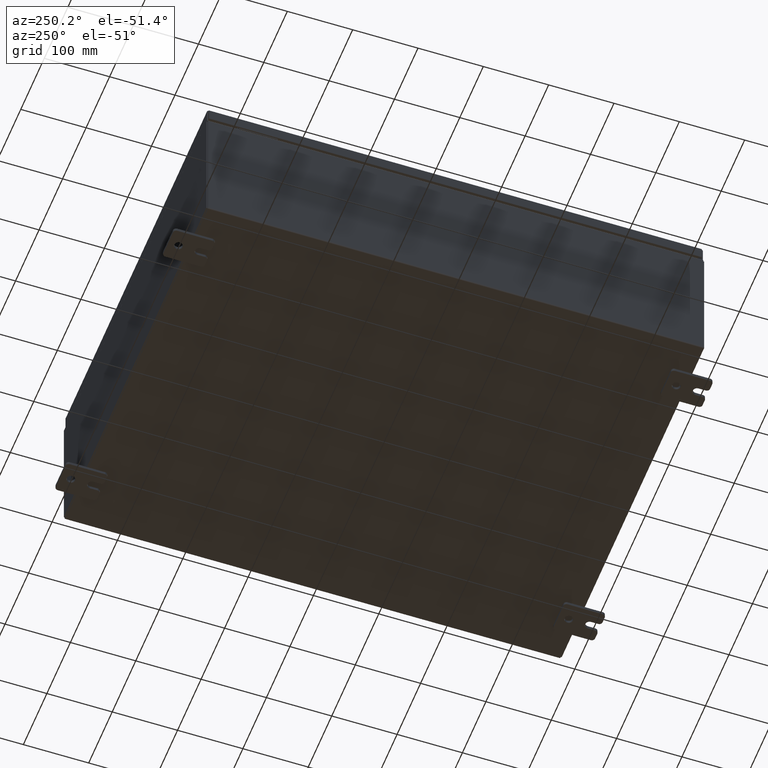
[diagram: clean part render]
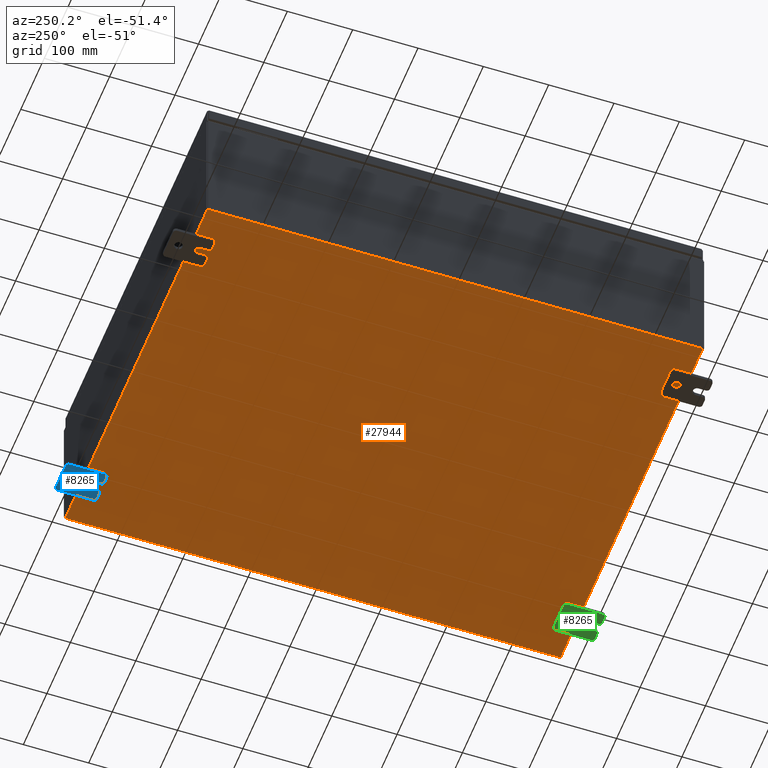
[diagram: same view with three faces highlighted in distinct colors, each labeled with its STEP entity id]
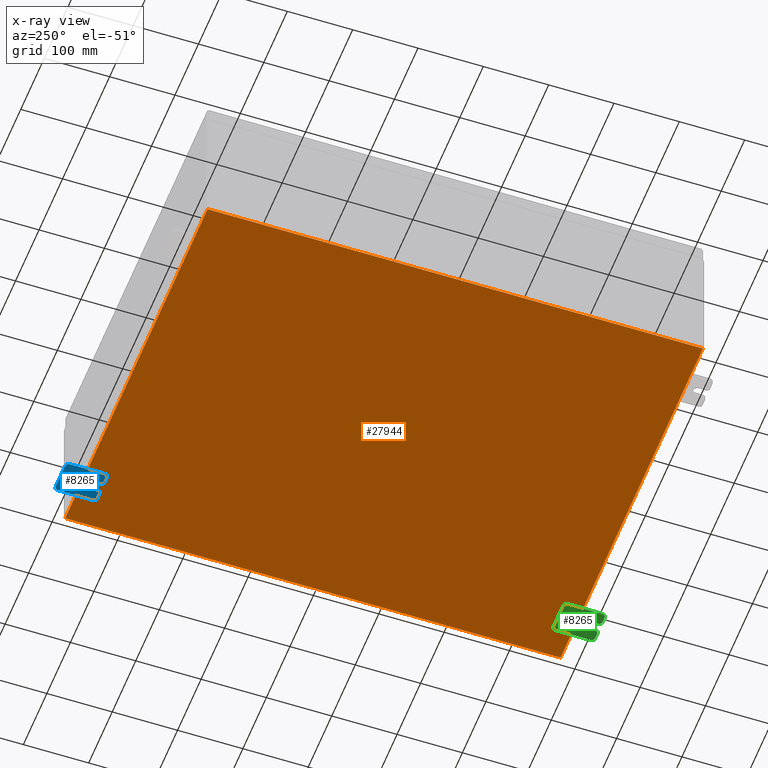
[diagram: x-ray of the same camera — body ghosted, the three highlighted faces saturated]
A machine part, auxiliary view with three faces highlighted in distinct colors.
The next image is the same camera in x-ray (body ghosted, the three faces saturated) — at least one of them is partly hidden behind the body in this view.
Their STEP definitions:

[orange] entity #27944 — the highlighted planar face has unit normal (0, 0, -1).
#3348 = FACE_OUTER_BOUND ( 'NONE', #10997, .T. ) ;
#3614 = EDGE_CURVE ( 'NONE', #29644, #48161, #17969, .T. ) ;
#4182 = VECTOR ( 'NONE', #53133, 39.37007874015748100 ) ;
#6231 = ORIENTED_EDGE ( 'NONE', *, *, #3614, .T. ) ;
#6518 = DIRECTION ( 'NONE',  ( -1.000000000000000000, 0.0000000000000000000, -0.0000000000000000000 ) ) ;
#6963 = DIRECTION ( 'NONE',  ( 0.0000000000000000000, 0.0000000000000000000, -1.000000000000000000 ) ) ;
#8586 = DIRECTION ( 'NONE',  ( 1.000000000000000000, 0.0000000000000000000, 0.0000000000000000000 ) ) ;
#10997 = EDGE_LOOP ( 'NONE', ( #41927, #6231, #54298, #20242 ) ) ;
#15297 = EDGE_CURVE ( 'NONE', #54032, #61108, #56868, .T. ) ;
#16483 = DIRECTION ( 'NONE',  ( -0.0000000000000000000, 1.000000000000000000, -0.0000000000000000000 ) ) ;
#17969 = LINE ( 'NONE', #28204, #55926 ) ;
#20242 = ORIENTED_EDGE ( 'NONE', *, *, #15297, .T. ) ;
#23399 = CARTESIAN_POINT ( 'NONE',  ( 11.91229999999999700, 14.92530000000000000, -0.07470000000000226500 ) ) ;
#23504 = LINE ( 'NONE', #36983, #48373 ) ;
#23660 = EDGE_CURVE ( 'NONE', #29644, #61108, #50245, .T. ) ;
#26194 = CARTESIAN_POINT ( 'NONE',  ( 11.91229999999999700, 14.92530000000000000, -0.07470000000000226500 ) ) ;
#27944 = ADVANCED_FACE ( 'NONE', ( #3348 ), #32787, .T. ) ;
#28204 = CARTESIAN_POINT ( 'NONE',  ( -11.91230000000000500, -14.92530000000000000, -0.07469999999999994700 ) ) ;
#29644 = VERTEX_POINT ( 'NONE', #63774 ) ;
#32787 = PLANE ( 'NONE',  #55988 ) ;
#36983 = CARTESIAN_POINT ( 'NONE',  ( -12.00000000000000500, 14.92530000000000000, -0.07470000000000000300 ) ) ;
#38196 = CARTESIAN_POINT ( 'NONE',  ( -12.00000000000000500, -14.92530000000000000, -0.07470000000000000300 ) ) ;
#41927 = ORIENTED_EDGE ( 'NONE', *, *, #23660, .F. ) ;
#47126 = VECTOR ( 'NONE', #8586, 39.37007874015748100 ) ;
#48161 = VERTEX_POINT ( 'NONE', #52408 ) ;
#48373 = VECTOR ( 'NONE', #61700, 39.37007874015748100 ) ;
#50245 = LINE ( 'NONE', #38196, #47126 ) ;
#52408 = CARTESIAN_POINT ( 'NONE',  ( -11.91230000000000500, 14.92530000000000000, -0.07470000000000000300 ) ) ;
#53133 = DIRECTION ( 'NONE',  ( -0.0000000000000000000, -1.000000000000000000, 8.208677865577646300E-017 ) ) ;
#54032 = VERTEX_POINT ( 'NONE', #26194 ) ;
#54298 = ORIENTED_EDGE ( 'NONE', *, *, #57365, .F. ) ;
#55926 = VECTOR ( 'NONE', #16483, 39.37007874015748100 ) ;
#55988 = AXIS2_PLACEMENT_3D ( 'NONE', #57548, #6963, #6518 ) ;
#56868 = LINE ( 'NONE', #23399, #4182 ) ;
#57365 = EDGE_CURVE ( 'NONE', #54032, #48161, #23504, .T. ) ;
#57548 = CARTESIAN_POINT ( 'NONE',  ( 0.0000000000000000000, 0.0000000000000000000, -0.07470000000000000300 ) ) ;
#60917 = CARTESIAN_POINT ( 'NONE',  ( 11.91229999999998800, -14.92530000000000000, -0.07470000000000000300 ) ) ;
#61108 = VERTEX_POINT ( 'NONE', #60917 ) ;
#61700 = DIRECTION ( 'NONE',  ( -1.000000000000000000, -0.0000000000000000000, -0.0000000000000000000 ) ) ;
#63774 = CARTESIAN_POINT ( 'NONE',  ( -11.91230000000000500, -14.92530000000000000, -0.07469999999999994700 ) ) ;

[blue] entity #8265 — the highlighted planar face has unit normal (0, 0, 1).
#975 = ORIENTED_EDGE ( 'NONE', *, *, #7274, .T. ) ;
#1472 = CARTESIAN_POINT ( 'NONE',  ( -0.1879999999999997800, -1.250000000000005600, -1.000000000000006200 ) ) ;
#1635 = EDGE_CURVE ( 'NONE', #60725, #10153, #49084, .T. ) ;
#2821 = DIRECTION ( 'NONE',  ( -1.000000000000000000, -0.0000000000000000000, 0.0000000000000000000 ) ) ;
#2991 = CARTESIAN_POINT ( 'NONE',  ( -0.1879999999999997800, -1.060000000000003400, -0.4400000000000005000 ) ) ;
#3615 = VERTEX_POINT ( 'NONE', #56563 ) ;
#6241 = AXIS2_PLACEMENT_3D ( 'NONE', #39733, #10090, #44745 ) ;
#7274 = EDGE_CURVE ( 'NONE', #24357, #14439, #41748, .T. ) ;
#7990 = DIRECTION ( 'NONE',  ( 0.0000000000000000000, 0.0000000000000000000, -1.000000000000000000 ) ) ;
#8062 = CARTESIAN_POINT ( 'NONE',  ( -0.1880000000000001900, -0.6249999999999992200, 0.2500000000000005000 ) ) ;
#8186 = CARTESIAN_POINT ( 'NONE',  ( -0.1880000000000010000, 0.6249999999999992200, -7.703811342100550500E-020 ) ) ;
#8255 = CARTESIAN_POINT ( 'NONE',  ( -0.1879999999999997800, -1.060000000000001200, 0.9999999999999988900 ) ) ;
#8265 = ADVANCED_FACE ( 'NONE', ( #25356, #63355 ), #28447, .F. ) ;
#8782 = DIRECTION ( 'NONE',  ( 1.000000000000000000, 0.0000000000000000000, -0.0000000000000000000 ) ) ;
#8925 = CARTESIAN_POINT ( 'NONE',  ( -0.1879999999999997800, 1.059999999999993400, -1.000000000000010000 ) ) ;
#8973 = CIRCLE ( 'NONE', #49964, 0.1900000000000011100 ) ;
#9044 = ORIENTED_EDGE ( 'NONE', *, *, #24147, .F. ) ;
#9297 = ORIENTED_EDGE ( 'NONE', *, *, #37527, .T. ) ;
#9809 = ORIENTED_EDGE ( 'NONE', *, *, #47727, .T. ) ;
#10090 = DIRECTION ( 'NONE',  ( -1.000000000000000000, -0.0000000000000000000, 0.0000000000000000000 ) ) ;
#10153 = VERTEX_POINT ( 'NONE', #34964 ) ;
#10985 = CIRCLE ( 'NONE', #46493, 0.2499999999999999200 ) ;
#11330 = EDGE_CURVE ( 'NONE', #42736, #40115, #51720, .T. ) ;
#11623 = VECTOR ( 'NONE', #19531, 39.37007874015748100 ) ;
#11700 = DIRECTION ( 'NONE',  ( 0.0000000000000000000, 0.0000000000000000000, -1.000000000000000000 ) ) ;
#11701 = CARTESIAN_POINT ( 'NONE',  ( -0.1880000000000001900, -0.6249999999999992200, -0.2499999999999993900 ) ) ;
#12077 = CARTESIAN_POINT ( 'NONE',  ( -0.1879999999999997800, -1.250000000000002200, 0.9999999999999992200 ) ) ;
#12304 = LINE ( 'NONE', #12077, #16993 ) ;
#12402 = CARTESIAN_POINT ( 'NONE',  ( -0.1879999999999997800, 1.059999999999993600, -0.8100000000000089400 ) ) ;
#12762 = EDGE_CURVE ( 'NONE', #3615, #13016, #22881, .T. ) ;
#13016 = VERTEX_POINT ( 'NONE', #28437 ) ;
#13138 = DIRECTION ( 'NONE',  ( 0.0000000000000000000, 0.0000000000000000000, -1.000000000000000000 ) ) ;
#13907 = EDGE_CURVE ( 'NONE', #49829, #42736, #15088, .T. ) ;
#14247 = CIRCLE ( 'NONE', #42544, 0.1900000000000011100 ) ;
#14439 = VERTEX_POINT ( 'NONE', #8255 ) ;
#14555 = CARTESIAN_POINT ( 'NONE',  ( -0.1879999999999997800, 1.249999999999997600, 0.9999999999999951200 ) ) ;
#14911 = VECTOR ( 'NONE', #36913, 39.37007874015748100 ) ;
#15088 = LINE ( 'NONE', #48885, #29800 ) ;
#16624 = EDGE_LOOP ( 'NONE', ( #63726, #30612 ) ) ;
#16758 = EDGE_CURVE ( 'NONE', #24357, #47095, #28063, .T. ) ;
#16993 = VECTOR ( 'NONE', #31749, 39.37007874015748100 ) ;
#17323 = EDGE_CURVE ( 'NONE', #10153, #60725, #10985, .T. ) ;
#17402 = DIRECTION ( 'NONE',  ( 0.0000000000000000000, 0.0000000000000000000, -1.000000000000000000 ) ) ;
#18170 = CARTESIAN_POINT ( 'NONE',  ( -0.1880000000000004700, -1.060000000000003400, -0.2499999999999994400 ) ) ;
#19109 = EDGE_LOOP ( 'NONE', ( #44959, #975, #39194, #32625, #47696, #33348, #43721, #9809, #30423, #9297, #9044, #51311, #54661, #51852 ) ) ;
#19531 = DIRECTION ( 'NONE',  ( 0.0000000000000000000, -1.000000000000000000, 1.639108796198558100E-015 ) ) ;
#19925 = DIRECTION ( 'NONE',  ( -1.000000000000000000, -0.0000000000000000000, 0.0000000000000000000 ) ) ;
#20467 = AXIS2_PLACEMENT_3D ( 'NONE', #62904, #8782, #43418 ) ;
#21792 = AXIS2_PLACEMENT_3D ( 'NONE', #22365, #57066, #27345 ) ;
#22365 = CARTESIAN_POINT ( 'NONE',  ( -0.1880000000000001900, -0.6249999999999992200, 6.829619984160658000E-017 ) ) ;
#22881 = LINE ( 'NONE', #32327, #34494 ) ;
#23062 = CARTESIAN_POINT ( 'NONE',  ( -0.1879999999999997800, -1.250000000000004700, -0.4400000000000002200 ) ) ;
#24147 = EDGE_CURVE ( 'NONE', #40115, #60063, #59497, .T. ) ;
#24357 = VERTEX_POINT ( 'NONE', #33409 ) ;
#25356 = FACE_BOUND ( 'NONE', #16624, .T. ) ;
#27345 = DIRECTION ( 'NONE',  ( -6.829619984160660000E-016, -1.000000000000000000, 0.0000000000000000000 ) ) ;
#28063 = LINE ( 'NONE', #31912, #14911 ) ;
#28437 = CARTESIAN_POINT ( 'NONE',  ( -0.1879999999999997800, 1.249999999999997300, 0.8099999999999935000 ) ) ;
#28447 = PLANE ( 'NONE',  #20467 ) ;
#29010 = DIRECTION ( 'NONE',  ( -1.000000000000000000, -0.0000000000000000000, 0.0000000000000000000 ) ) ;
#29800 = VECTOR ( 'NONE', #38873, 39.37007874015748100 ) ;
#30423 = ORIENTED_EDGE ( 'NONE', *, *, #41677, .F. ) ;
#30518 = AXIS2_PLACEMENT_3D ( 'NONE', #2991, #37605, #7990 ) ;
#30612 = ORIENTED_EDGE ( 'NONE', *, *, #1635, .T. ) ;
#30807 = AXIS2_PLACEMENT_3D ( 'NONE', #32424, #2821, #51791 ) ;
#31749 = DIRECTION ( 'NONE',  ( 0.0000000000000000000, -1.639108796198553600E-015, -1.000000000000000000 ) ) ;
#31912 = CARTESIAN_POINT ( 'NONE',  ( -0.1879999999999997800, -1.250000000000002200, 0.9999999999999992200 ) ) ;
#32327 = CARTESIAN_POINT ( 'NONE',  ( -0.1879999999999997800, 1.249999999999994200, -1.000000000000010400 ) ) ;
#32424 = CARTESIAN_POINT ( 'NONE',  ( -0.1879999999999997800, -1.060000000000001600, 0.8099999999999978300 ) ) ;
#32625 = ORIENTED_EDGE ( 'NONE', *, *, #52528, .T. ) ;
#33076 = VECTOR ( 'NONE', #56556, 39.37007874015748100 ) ;
#33348 = ORIENTED_EDGE ( 'NONE', *, *, #45770, .T. ) ;
#33409 = CARTESIAN_POINT ( 'NONE',  ( -0.1879999999999997800, -1.250000000000002400, 0.8099999999999980500 ) ) ;
#33850 = EDGE_CURVE ( 'NONE', #61722, #56961, #37807, .T. ) ;
#34209 = CARTESIAN_POINT ( 'NONE',  ( -0.1880000000000001900, -0.6249999999999992200, -0.2499999999999998600 ) ) ;
#34494 = VECTOR ( 'NONE', #47339, 39.37007874015748100 ) ;
#34964 = CARTESIAN_POINT ( 'NONE',  ( -0.1880000000000010000, 0.6249999999999992200, -0.2499999999999999200 ) ) ;
#36248 = VECTOR ( 'NONE', #50838, 39.37007874015748100 ) ;
#36913 = DIRECTION ( 'NONE',  ( 0.0000000000000000000, -1.639108796198553600E-015, -1.000000000000000000 ) ) ;
#37144 = CIRCLE ( 'NONE', #6241, 0.1900000000000011400 ) ;
#37527 = EDGE_CURVE ( 'NONE', #55088, #60063, #38447, .T. ) ;
#37605 = DIRECTION ( 'NONE',  ( -1.000000000000000000, -0.0000000000000000000, 0.0000000000000000000 ) ) ;
#37807 = LINE ( 'NONE', #1472, #36248 ) ;
#37943 = LINE ( 'NONE', #14555, #11623 ) ;
#38447 = CIRCLE ( 'NONE', #30518, 0.1900000000000011100 ) ;
#38714 = CARTESIAN_POINT ( 'NONE',  ( -0.1880000000000010000, 0.6249999999999992200, -7.703811342100550500E-020 ) ) ;
#38873 = DIRECTION ( 'NONE',  ( 6.556435184794182400E-016, 1.000000000000000000, 0.0000000000000000000 ) ) ;
#39194 = ORIENTED_EDGE ( 'NONE', *, *, #40149, .F. ) ;
#39681 = CARTESIAN_POINT ( 'NONE',  ( -0.1879999999999997800, -1.060000000000004500, -1.000000000000006400 ) ) ;
#39733 = CARTESIAN_POINT ( 'NONE',  ( -0.1879999999999997800, -1.060000000000002100, 0.4400000000000016700 ) ) ;
#40115 = VERTEX_POINT ( 'NONE', #34209 ) ;
#40149 = EDGE_CURVE ( 'NONE', #59934, #14439, #37943, .T. ) ;
#40666 = EDGE_CURVE ( 'NONE', #49829, #47095, #37144, .T. ) ;
#41015 = AXIS2_PLACEMENT_3D ( 'NONE', #49637, #19925, #54614 ) ;
#41677 = EDGE_CURVE ( 'NONE', #55088, #63444, #12304, .T. ) ;
#41748 = CIRCLE ( 'NONE', #30807, 0.1900000000000011100 ) ;
#42544 = AXIS2_PLACEMENT_3D ( 'NONE', #58709, #29010, #63685 ) ;
#42736 = VERTEX_POINT ( 'NONE', #8062 ) ;
#42809 = DIRECTION ( 'NONE',  ( 1.000000000000000000, -0.0000000000000000000, -5.163192708025532000E-017 ) ) ;
#42963 = CARTESIAN_POINT ( 'NONE',  ( -0.1879999999999997800, -1.250000000000003100, 0.4400000000000020000 ) ) ;
#43418 = DIRECTION ( 'NONE',  ( -0.0000000000000000000, 0.0000000000000000000, -1.000000000000000000 ) ) ;
#43721 = ORIENTED_EDGE ( 'NONE', *, *, #33850, .F. ) ;
#44745 = DIRECTION ( 'NONE',  ( 0.0000000000000000000, 0.0000000000000000000, -1.000000000000000000 ) ) ;
#44934 = DIRECTION ( 'NONE',  ( 1.000000000000000000, -0.0000000000000000000, -5.163192708025532000E-017 ) ) ;
#44959 = ORIENTED_EDGE ( 'NONE', *, *, #16758, .F. ) ;
#45770 = EDGE_CURVE ( 'NONE', #3615, #56961, #8973, .T. ) ;
#46390 = AXIS2_PLACEMENT_3D ( 'NONE', #38714, #44934, #11700 ) ;
#46493 = AXIS2_PLACEMENT_3D ( 'NONE', #8186, #42809, #13138 ) ;
#47071 = DIRECTION ( 'NONE',  ( -1.000000000000000000, -0.0000000000000000000, 0.0000000000000000000 ) ) ;
#47092 = CIRCLE ( 'NONE', #41015, 0.1900000000000011100 ) ;
#47095 = VERTEX_POINT ( 'NONE', #42963 ) ;
#47339 = DIRECTION ( 'NONE',  ( 0.0000000000000000000, 1.639108796198553600E-015, 1.000000000000000000 ) ) ;
#47696 = ORIENTED_EDGE ( 'NONE', *, *, #12762, .F. ) ;
#47727 = EDGE_CURVE ( 'NONE', #61722, #63444, #14247, .T. ) ;
#48885 = CARTESIAN_POINT ( 'NONE',  ( -0.1880000000000005800, -1.250000000000003800, 0.2500000000000005000 ) ) ;
#49084 = CIRCLE ( 'NONE', #46390, 0.2499999999999999200 ) ;
#49637 = CARTESIAN_POINT ( 'NONE',  ( -0.1879999999999997800, 1.059999999999996300, 0.8099999999999938400 ) ) ;
#49829 = VERTEX_POINT ( 'NONE', #53986 ) ;
#49964 = AXIS2_PLACEMENT_3D ( 'NONE', #12402, #47071, #17402 ) ;
#50838 = DIRECTION ( 'NONE',  ( 0.0000000000000000000, 1.000000000000000000, -1.639108796198558100E-015 ) ) ;
#51311 = ORIENTED_EDGE ( 'NONE', *, *, #11330, .F. ) ;
#51720 = CIRCLE ( 'NONE', #21792, 0.2499999999999999200 ) ;
#51791 = DIRECTION ( 'NONE',  ( 0.0000000000000000000, 7.189073667537492800E-016, -1.000000000000000000 ) ) ;
#51852 = ORIENTED_EDGE ( 'NONE', *, *, #40666, .T. ) ;
#52528 = EDGE_CURVE ( 'NONE', #59934, #13016, #47092, .T. ) ;
#53986 = CARTESIAN_POINT ( 'NONE',  ( -0.1880000000000004700, -1.060000000000002100, 0.2500000000000005000 ) ) ;
#54614 = DIRECTION ( 'NONE',  ( 0.0000000000000000000, 0.0000000000000000000, -1.000000000000000000 ) ) ;
#54661 = ORIENTED_EDGE ( 'NONE', *, *, #13907, .F. ) ;
#55088 = VERTEX_POINT ( 'NONE', #23062 ) ;
#56556 = DIRECTION ( 'NONE',  ( -6.556435184794182400E-016, -1.000000000000000000, -1.639108796198545600E-016 ) ) ;
#56563 = CARTESIAN_POINT ( 'NONE',  ( -0.1879999999999997800, 1.249999999999994700, -0.8100000000000092700 ) ) ;
#56961 = VERTEX_POINT ( 'NONE', #8925 ) ;
#57066 = DIRECTION ( 'NONE',  ( -1.000000000000000000, 6.523827964459549700E-016, 5.163192708025532000E-017 ) ) ;
#57288 = CARTESIAN_POINT ( 'NONE',  ( -0.1880000000000010000, 0.6249999999999992200, 0.2499999999999999200 ) ) ;
#58628 = CARTESIAN_POINT ( 'NONE',  ( -0.1879999999999997800, -1.250000000000005300, -0.8100000000000047200 ) ) ;
#58709 = CARTESIAN_POINT ( 'NONE',  ( -0.1879999999999997800, -1.060000000000004100, -0.8100000000000050500 ) ) ;
#59497 = LINE ( 'NONE', #11701, #33076 ) ;
#59934 = VERTEX_POINT ( 'NONE', #62112 ) ;
#60063 = VERTEX_POINT ( 'NONE', #18170 ) ;
#60725 = VERTEX_POINT ( 'NONE', #57288 ) ;
#61722 = VERTEX_POINT ( 'NONE', #39681 ) ;
#62112 = CARTESIAN_POINT ( 'NONE',  ( -0.1879999999999997800, 1.059999999999996500, 0.9999999999999953400 ) ) ;
#62904 = CARTESIAN_POINT ( 'NONE',  ( -0.1879999999999997800, 0.0000000000000000000, 0.0000000000000000000 ) ) ;
#63355 = FACE_OUTER_BOUND ( 'NONE', #19109, .T. ) ;
#63444 = VERTEX_POINT ( 'NONE', #58628 ) ;
#63685 = DIRECTION ( 'NONE',  ( 0.0000000000000000000, 0.0000000000000000000, -1.000000000000000000 ) ) ;
#63726 = ORIENTED_EDGE ( 'NONE', *, *, #17323, .T. ) ;

[green] entity #8265 — the highlighted planar face has unit normal (0, 0, 1).
#975 = ORIENTED_EDGE ( 'NONE', *, *, #7274, .T. ) ;
#1472 = CARTESIAN_POINT ( 'NONE',  ( -0.1879999999999997800, -1.250000000000005600, -1.000000000000006200 ) ) ;
#1635 = EDGE_CURVE ( 'NONE', #60725, #10153, #49084, .T. ) ;
#2821 = DIRECTION ( 'NONE',  ( -1.000000000000000000, -0.0000000000000000000, 0.0000000000000000000 ) ) ;
#2991 = CARTESIAN_POINT ( 'NONE',  ( -0.1879999999999997800, -1.060000000000003400, -0.4400000000000005000 ) ) ;
#3615 = VERTEX_POINT ( 'NONE', #56563 ) ;
#6241 = AXIS2_PLACEMENT_3D ( 'NONE', #39733, #10090, #44745 ) ;
#7274 = EDGE_CURVE ( 'NONE', #24357, #14439, #41748, .T. ) ;
#7990 = DIRECTION ( 'NONE',  ( 0.0000000000000000000, 0.0000000000000000000, -1.000000000000000000 ) ) ;
#8062 = CARTESIAN_POINT ( 'NONE',  ( -0.1880000000000001900, -0.6249999999999992200, 0.2500000000000005000 ) ) ;
#8186 = CARTESIAN_POINT ( 'NONE',  ( -0.1880000000000010000, 0.6249999999999992200, -7.703811342100550500E-020 ) ) ;
#8255 = CARTESIAN_POINT ( 'NONE',  ( -0.1879999999999997800, -1.060000000000001200, 0.9999999999999988900 ) ) ;
#8265 = ADVANCED_FACE ( 'NONE', ( #25356, #63355 ), #28447, .F. ) ;
#8782 = DIRECTION ( 'NONE',  ( 1.000000000000000000, 0.0000000000000000000, -0.0000000000000000000 ) ) ;
#8925 = CARTESIAN_POINT ( 'NONE',  ( -0.1879999999999997800, 1.059999999999993400, -1.000000000000010000 ) ) ;
#8973 = CIRCLE ( 'NONE', #49964, 0.1900000000000011100 ) ;
#9044 = ORIENTED_EDGE ( 'NONE', *, *, #24147, .F. ) ;
#9297 = ORIENTED_EDGE ( 'NONE', *, *, #37527, .T. ) ;
#9809 = ORIENTED_EDGE ( 'NONE', *, *, #47727, .T. ) ;
#10090 = DIRECTION ( 'NONE',  ( -1.000000000000000000, -0.0000000000000000000, 0.0000000000000000000 ) ) ;
#10153 = VERTEX_POINT ( 'NONE', #34964 ) ;
#10985 = CIRCLE ( 'NONE', #46493, 0.2499999999999999200 ) ;
#11330 = EDGE_CURVE ( 'NONE', #42736, #40115, #51720, .T. ) ;
#11623 = VECTOR ( 'NONE', #19531, 39.37007874015748100 ) ;
#11700 = DIRECTION ( 'NONE',  ( 0.0000000000000000000, 0.0000000000000000000, -1.000000000000000000 ) ) ;
#11701 = CARTESIAN_POINT ( 'NONE',  ( -0.1880000000000001900, -0.6249999999999992200, -0.2499999999999993900 ) ) ;
#12077 = CARTESIAN_POINT ( 'NONE',  ( -0.1879999999999997800, -1.250000000000002200, 0.9999999999999992200 ) ) ;
#12304 = LINE ( 'NONE', #12077, #16993 ) ;
#12402 = CARTESIAN_POINT ( 'NONE',  ( -0.1879999999999997800, 1.059999999999993600, -0.8100000000000089400 ) ) ;
#12762 = EDGE_CURVE ( 'NONE', #3615, #13016, #22881, .T. ) ;
#13016 = VERTEX_POINT ( 'NONE', #28437 ) ;
#13138 = DIRECTION ( 'NONE',  ( 0.0000000000000000000, 0.0000000000000000000, -1.000000000000000000 ) ) ;
#13907 = EDGE_CURVE ( 'NONE', #49829, #42736, #15088, .T. ) ;
#14247 = CIRCLE ( 'NONE', #42544, 0.1900000000000011100 ) ;
#14439 = VERTEX_POINT ( 'NONE', #8255 ) ;
#14555 = CARTESIAN_POINT ( 'NONE',  ( -0.1879999999999997800, 1.249999999999997600, 0.9999999999999951200 ) ) ;
#14911 = VECTOR ( 'NONE', #36913, 39.37007874015748100 ) ;
#15088 = LINE ( 'NONE', #48885, #29800 ) ;
#16624 = EDGE_LOOP ( 'NONE', ( #63726, #30612 ) ) ;
#16758 = EDGE_CURVE ( 'NONE', #24357, #47095, #28063, .T. ) ;
#16993 = VECTOR ( 'NONE', #31749, 39.37007874015748100 ) ;
#17323 = EDGE_CURVE ( 'NONE', #10153, #60725, #10985, .T. ) ;
#17402 = DIRECTION ( 'NONE',  ( 0.0000000000000000000, 0.0000000000000000000, -1.000000000000000000 ) ) ;
#18170 = CARTESIAN_POINT ( 'NONE',  ( -0.1880000000000004700, -1.060000000000003400, -0.2499999999999994400 ) ) ;
#19109 = EDGE_LOOP ( 'NONE', ( #44959, #975, #39194, #32625, #47696, #33348, #43721, #9809, #30423, #9297, #9044, #51311, #54661, #51852 ) ) ;
#19531 = DIRECTION ( 'NONE',  ( 0.0000000000000000000, -1.000000000000000000, 1.639108796198558100E-015 ) ) ;
#19925 = DIRECTION ( 'NONE',  ( -1.000000000000000000, -0.0000000000000000000, 0.0000000000000000000 ) ) ;
#20467 = AXIS2_PLACEMENT_3D ( 'NONE', #62904, #8782, #43418 ) ;
#21792 = AXIS2_PLACEMENT_3D ( 'NONE', #22365, #57066, #27345 ) ;
#22365 = CARTESIAN_POINT ( 'NONE',  ( -0.1880000000000001900, -0.6249999999999992200, 6.829619984160658000E-017 ) ) ;
#22881 = LINE ( 'NONE', #32327, #34494 ) ;
#23062 = CARTESIAN_POINT ( 'NONE',  ( -0.1879999999999997800, -1.250000000000004700, -0.4400000000000002200 ) ) ;
#24147 = EDGE_CURVE ( 'NONE', #40115, #60063, #59497, .T. ) ;
#24357 = VERTEX_POINT ( 'NONE', #33409 ) ;
#25356 = FACE_BOUND ( 'NONE', #16624, .T. ) ;
#27345 = DIRECTION ( 'NONE',  ( -6.829619984160660000E-016, -1.000000000000000000, 0.0000000000000000000 ) ) ;
#28063 = LINE ( 'NONE', #31912, #14911 ) ;
#28437 = CARTESIAN_POINT ( 'NONE',  ( -0.1879999999999997800, 1.249999999999997300, 0.8099999999999935000 ) ) ;
#28447 = PLANE ( 'NONE',  #20467 ) ;
#29010 = DIRECTION ( 'NONE',  ( -1.000000000000000000, -0.0000000000000000000, 0.0000000000000000000 ) ) ;
#29800 = VECTOR ( 'NONE', #38873, 39.37007874015748100 ) ;
#30423 = ORIENTED_EDGE ( 'NONE', *, *, #41677, .F. ) ;
#30518 = AXIS2_PLACEMENT_3D ( 'NONE', #2991, #37605, #7990 ) ;
#30612 = ORIENTED_EDGE ( 'NONE', *, *, #1635, .T. ) ;
#30807 = AXIS2_PLACEMENT_3D ( 'NONE', #32424, #2821, #51791 ) ;
#31749 = DIRECTION ( 'NONE',  ( 0.0000000000000000000, -1.639108796198553600E-015, -1.000000000000000000 ) ) ;
#31912 = CARTESIAN_POINT ( 'NONE',  ( -0.1879999999999997800, -1.250000000000002200, 0.9999999999999992200 ) ) ;
#32327 = CARTESIAN_POINT ( 'NONE',  ( -0.1879999999999997800, 1.249999999999994200, -1.000000000000010400 ) ) ;
#32424 = CARTESIAN_POINT ( 'NONE',  ( -0.1879999999999997800, -1.060000000000001600, 0.8099999999999978300 ) ) ;
#32625 = ORIENTED_EDGE ( 'NONE', *, *, #52528, .T. ) ;
#33076 = VECTOR ( 'NONE', #56556, 39.37007874015748100 ) ;
#33348 = ORIENTED_EDGE ( 'NONE', *, *, #45770, .T. ) ;
#33409 = CARTESIAN_POINT ( 'NONE',  ( -0.1879999999999997800, -1.250000000000002400, 0.8099999999999980500 ) ) ;
#33850 = EDGE_CURVE ( 'NONE', #61722, #56961, #37807, .T. ) ;
#34209 = CARTESIAN_POINT ( 'NONE',  ( -0.1880000000000001900, -0.6249999999999992200, -0.2499999999999998600 ) ) ;
#34494 = VECTOR ( 'NONE', #47339, 39.37007874015748100 ) ;
#34964 = CARTESIAN_POINT ( 'NONE',  ( -0.1880000000000010000, 0.6249999999999992200, -0.2499999999999999200 ) ) ;
#36248 = VECTOR ( 'NONE', #50838, 39.37007874015748100 ) ;
#36913 = DIRECTION ( 'NONE',  ( 0.0000000000000000000, -1.639108796198553600E-015, -1.000000000000000000 ) ) ;
#37144 = CIRCLE ( 'NONE', #6241, 0.1900000000000011400 ) ;
#37527 = EDGE_CURVE ( 'NONE', #55088, #60063, #38447, .T. ) ;
#37605 = DIRECTION ( 'NONE',  ( -1.000000000000000000, -0.0000000000000000000, 0.0000000000000000000 ) ) ;
#37807 = LINE ( 'NONE', #1472, #36248 ) ;
#37943 = LINE ( 'NONE', #14555, #11623 ) ;
#38447 = CIRCLE ( 'NONE', #30518, 0.1900000000000011100 ) ;
#38714 = CARTESIAN_POINT ( 'NONE',  ( -0.1880000000000010000, 0.6249999999999992200, -7.703811342100550500E-020 ) ) ;
#38873 = DIRECTION ( 'NONE',  ( 6.556435184794182400E-016, 1.000000000000000000, 0.0000000000000000000 ) ) ;
#39194 = ORIENTED_EDGE ( 'NONE', *, *, #40149, .F. ) ;
#39681 = CARTESIAN_POINT ( 'NONE',  ( -0.1879999999999997800, -1.060000000000004500, -1.000000000000006400 ) ) ;
#39733 = CARTESIAN_POINT ( 'NONE',  ( -0.1879999999999997800, -1.060000000000002100, 0.4400000000000016700 ) ) ;
#40115 = VERTEX_POINT ( 'NONE', #34209 ) ;
#40149 = EDGE_CURVE ( 'NONE', #59934, #14439, #37943, .T. ) ;
#40666 = EDGE_CURVE ( 'NONE', #49829, #47095, #37144, .T. ) ;
#41015 = AXIS2_PLACEMENT_3D ( 'NONE', #49637, #19925, #54614 ) ;
#41677 = EDGE_CURVE ( 'NONE', #55088, #63444, #12304, .T. ) ;
#41748 = CIRCLE ( 'NONE', #30807, 0.1900000000000011100 ) ;
#42544 = AXIS2_PLACEMENT_3D ( 'NONE', #58709, #29010, #63685 ) ;
#42736 = VERTEX_POINT ( 'NONE', #8062 ) ;
#42809 = DIRECTION ( 'NONE',  ( 1.000000000000000000, -0.0000000000000000000, -5.163192708025532000E-017 ) ) ;
#42963 = CARTESIAN_POINT ( 'NONE',  ( -0.1879999999999997800, -1.250000000000003100, 0.4400000000000020000 ) ) ;
#43418 = DIRECTION ( 'NONE',  ( -0.0000000000000000000, 0.0000000000000000000, -1.000000000000000000 ) ) ;
#43721 = ORIENTED_EDGE ( 'NONE', *, *, #33850, .F. ) ;
#44745 = DIRECTION ( 'NONE',  ( 0.0000000000000000000, 0.0000000000000000000, -1.000000000000000000 ) ) ;
#44934 = DIRECTION ( 'NONE',  ( 1.000000000000000000, -0.0000000000000000000, -5.163192708025532000E-017 ) ) ;
#44959 = ORIENTED_EDGE ( 'NONE', *, *, #16758, .F. ) ;
#45770 = EDGE_CURVE ( 'NONE', #3615, #56961, #8973, .T. ) ;
#46390 = AXIS2_PLACEMENT_3D ( 'NONE', #38714, #44934, #11700 ) ;
#46493 = AXIS2_PLACEMENT_3D ( 'NONE', #8186, #42809, #13138 ) ;
#47071 = DIRECTION ( 'NONE',  ( -1.000000000000000000, -0.0000000000000000000, 0.0000000000000000000 ) ) ;
#47092 = CIRCLE ( 'NONE', #41015, 0.1900000000000011100 ) ;
#47095 = VERTEX_POINT ( 'NONE', #42963 ) ;
#47339 = DIRECTION ( 'NONE',  ( 0.0000000000000000000, 1.639108796198553600E-015, 1.000000000000000000 ) ) ;
#47696 = ORIENTED_EDGE ( 'NONE', *, *, #12762, .F. ) ;
#47727 = EDGE_CURVE ( 'NONE', #61722, #63444, #14247, .T. ) ;
#48885 = CARTESIAN_POINT ( 'NONE',  ( -0.1880000000000005800, -1.250000000000003800, 0.2500000000000005000 ) ) ;
#49084 = CIRCLE ( 'NONE', #46390, 0.2499999999999999200 ) ;
#49637 = CARTESIAN_POINT ( 'NONE',  ( -0.1879999999999997800, 1.059999999999996300, 0.8099999999999938400 ) ) ;
#49829 = VERTEX_POINT ( 'NONE', #53986 ) ;
#49964 = AXIS2_PLACEMENT_3D ( 'NONE', #12402, #47071, #17402 ) ;
#50838 = DIRECTION ( 'NONE',  ( 0.0000000000000000000, 1.000000000000000000, -1.639108796198558100E-015 ) ) ;
#51311 = ORIENTED_EDGE ( 'NONE', *, *, #11330, .F. ) ;
#51720 = CIRCLE ( 'NONE', #21792, 0.2499999999999999200 ) ;
#51791 = DIRECTION ( 'NONE',  ( 0.0000000000000000000, 7.189073667537492800E-016, -1.000000000000000000 ) ) ;
#51852 = ORIENTED_EDGE ( 'NONE', *, *, #40666, .T. ) ;
#52528 = EDGE_CURVE ( 'NONE', #59934, #13016, #47092, .T. ) ;
#53986 = CARTESIAN_POINT ( 'NONE',  ( -0.1880000000000004700, -1.060000000000002100, 0.2500000000000005000 ) ) ;
#54614 = DIRECTION ( 'NONE',  ( 0.0000000000000000000, 0.0000000000000000000, -1.000000000000000000 ) ) ;
#54661 = ORIENTED_EDGE ( 'NONE', *, *, #13907, .F. ) ;
#55088 = VERTEX_POINT ( 'NONE', #23062 ) ;
#56556 = DIRECTION ( 'NONE',  ( -6.556435184794182400E-016, -1.000000000000000000, -1.639108796198545600E-016 ) ) ;
#56563 = CARTESIAN_POINT ( 'NONE',  ( -0.1879999999999997800, 1.249999999999994700, -0.8100000000000092700 ) ) ;
#56961 = VERTEX_POINT ( 'NONE', #8925 ) ;
#57066 = DIRECTION ( 'NONE',  ( -1.000000000000000000, 6.523827964459549700E-016, 5.163192708025532000E-017 ) ) ;
#57288 = CARTESIAN_POINT ( 'NONE',  ( -0.1880000000000010000, 0.6249999999999992200, 0.2499999999999999200 ) ) ;
#58628 = CARTESIAN_POINT ( 'NONE',  ( -0.1879999999999997800, -1.250000000000005300, -0.8100000000000047200 ) ) ;
#58709 = CARTESIAN_POINT ( 'NONE',  ( -0.1879999999999997800, -1.060000000000004100, -0.8100000000000050500 ) ) ;
#59497 = LINE ( 'NONE', #11701, #33076 ) ;
#59934 = VERTEX_POINT ( 'NONE', #62112 ) ;
#60063 = VERTEX_POINT ( 'NONE', #18170 ) ;
#60725 = VERTEX_POINT ( 'NONE', #57288 ) ;
#61722 = VERTEX_POINT ( 'NONE', #39681 ) ;
#62112 = CARTESIAN_POINT ( 'NONE',  ( -0.1879999999999997800, 1.059999999999996500, 0.9999999999999953400 ) ) ;
#62904 = CARTESIAN_POINT ( 'NONE',  ( -0.1879999999999997800, 0.0000000000000000000, 0.0000000000000000000 ) ) ;
#63355 = FACE_OUTER_BOUND ( 'NONE', #19109, .T. ) ;
#63444 = VERTEX_POINT ( 'NONE', #58628 ) ;
#63685 = DIRECTION ( 'NONE',  ( 0.0000000000000000000, 0.0000000000000000000, -1.000000000000000000 ) ) ;
#63726 = ORIENTED_EDGE ( 'NONE', *, *, #17323, .T. ) ;